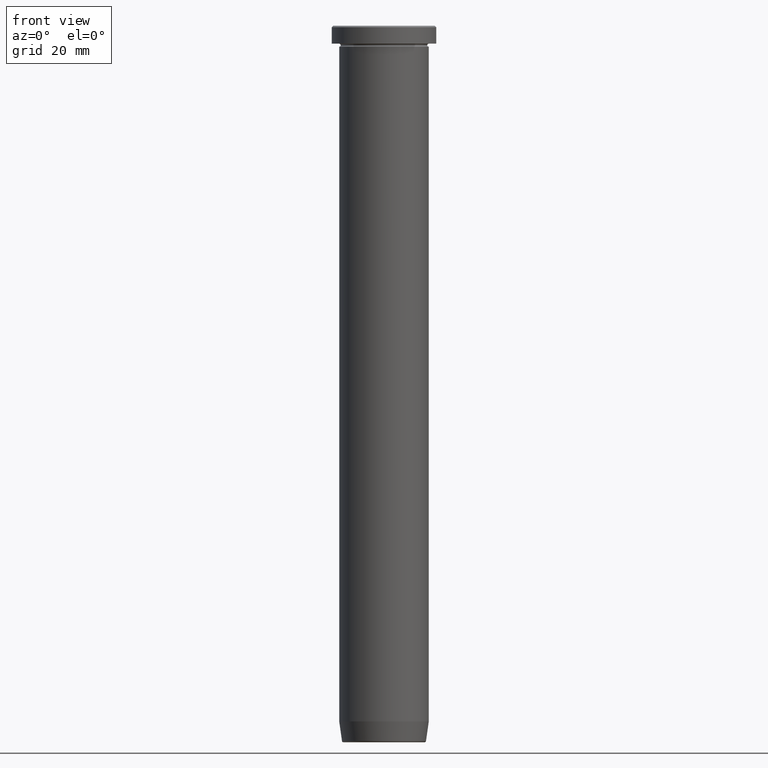
[diagram: clean part render]
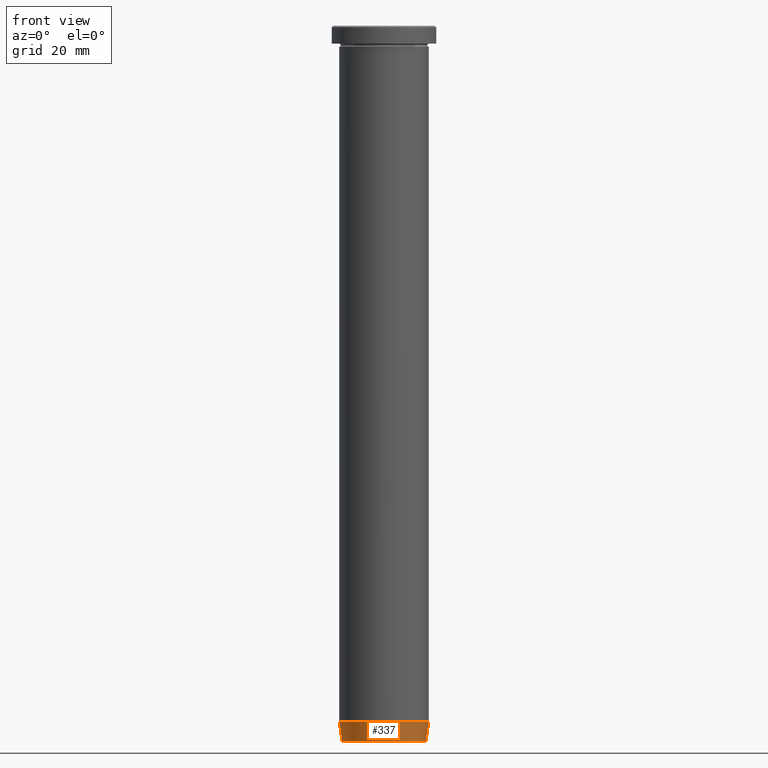
[diagram: same view with one face highlighted and labeled with its STEP entity id]
A machine part, front view. The second image highlights one B-rep face of the part: STEP entity #337.
In plain terms, the highlighted conical surface has half-angle 8 deg.
Its self-contained STEP definition (entity closure, byte-faithful):
#6 = ORIENTED_EDGE ( 'NONE', *, *, #364, .T. ) ;
#10 = DIRECTION ( 'NONE',  ( -0.000000000000000000, -0.000000000000000000, 1.000000000000000000 ) ) ;
#14 = CARTESIAN_POINT ( 'NONE',  ( 0.000000000000000000, 0.000000000000000000, -232.9999999999999716 ) ) ;
#31 = ORIENTED_EDGE ( 'NONE', *, *, #494, .T. ) ;
#44 = ORIENTED_EDGE ( 'NONE', *, *, #110, .F. ) ;
#49 = CARTESIAN_POINT ( 'NONE',  ( 0.000000000000000000, 0.000000000000000000, -240.0000000000000000 ) ) ;
#65 = CONICAL_SURFACE ( 'NONE', #406, 14.01621415708325280, 0.1396263401595470577 ) ;
#74 = VERTEX_POINT ( 'NONE', #298 ) ;
#91 = DIRECTION ( 'NONE',  ( -0.000000000000000000, -0.000000000000000000, 1.000000000000000000 ) ) ;
#110 = EDGE_CURVE ( 'NONE', #523, #168, #358, .T. ) ;
#113 = AXIS2_PLACEMENT_3D ( 'NONE', #14, #10, #155 ) ;
#121 = VERTEX_POINT ( 'NONE', #202 ) ;
#144 = ORIENTED_EDGE ( 'NONE', *, *, #512, .F. ) ;
#154 = CIRCLE ( 'NONE', #164, 14.07670482254592059 ) ;
#155 = DIRECTION ( 'NONE',  ( 1.000000000000000000, 0.000000000000000000, 0.000000000000000000 ) ) ;
#164 = AXIS2_PLACEMENT_3D ( 'NONE', #363, #91, #181 ) ;
#168 = VERTEX_POINT ( 'NONE', #397 ) ;
#181 = DIRECTION ( 'NONE',  ( -1.000000000000000000, 0.000000000000000000, 0.000000000000000000 ) ) ;
#197 = DIRECTION ( 'NONE',  ( -0.1391731009600661317, 1.704378926181564302E-17, 0.9902680687415702510 ) ) ;
#202 = CARTESIAN_POINT ( 'NONE',  ( 14.07670482254592059, 0.000000000000000000, -239.5695865504800395 ) ) ;
#211 = VECTOR ( 'NONE', #197, 1000.000000000000000 ) ;
#298 = CARTESIAN_POINT ( 'NONE',  ( -14.07670482254592059, 1.780434674534163799E-15, -239.5695865504800395 ) ) ;
#331 = DIRECTION ( 'NONE',  ( 0.1391731009600661317, 0.000000000000000000, 0.9902680687415702510 ) ) ;
#337 = ADVANCED_FACE ( 'NONE', ( #416 ), #65, .T. ) ;
#358 = CIRCLE ( 'NONE', #113, 15.00000000000000000 ) ;
#363 = CARTESIAN_POINT ( 'NONE',  ( 0.000000000000000000, 0.000000000000000000, -239.5695865504800395 ) ) ;
#364 = EDGE_CURVE ( 'NONE', #74, #121, #154, .T. ) ;
#367 = DIRECTION ( 'NONE',  ( 1.000000000000000000, 0.000000000000000000, 0.000000000000000000 ) ) ;
#374 = CARTESIAN_POINT ( 'NONE',  ( -14.01621415708325280, 1.716491180363582438E-15, -240.0000000000000000 ) ) ;
#397 = CARTESIAN_POINT ( 'NONE',  ( 15.00000000000000000, 0.000000000000000000, -232.9999999999999716 ) ) ;
#406 = AXIS2_PLACEMENT_3D ( 'NONE', #49, #412, #367 ) ;
#412 = DIRECTION ( 'NONE',  ( -0.000000000000000000, -0.000000000000000000, 1.000000000000000000 ) ) ;
#416 = FACE_OUTER_BOUND ( 'NONE', #498, .T. ) ;
#420 = CARTESIAN_POINT ( 'NONE',  ( 14.01621415708325280, 0.000000000000000000, -240.0000000000000000 ) ) ;
#467 = LINE ( 'NONE', #420, #569 ) ;
#494 = EDGE_CURVE ( 'NONE', #121, #168, #467, .T. ) ;
#498 = EDGE_LOOP ( 'NONE', ( #144, #6, #31, #44 ) ) ;
#512 = EDGE_CURVE ( 'NONE', #74, #523, #513, .T. ) ;
#513 = LINE ( 'NONE', #374, #211 ) ;
#523 = VERTEX_POINT ( 'NONE', #563 ) ;
#563 = CARTESIAN_POINT ( 'NONE',  ( -15.00000000000000000, 1.836970198721029589E-15, -232.9999999999999716 ) ) ;
#569 = VECTOR ( 'NONE', #331, 1000.000000000000000 ) ;